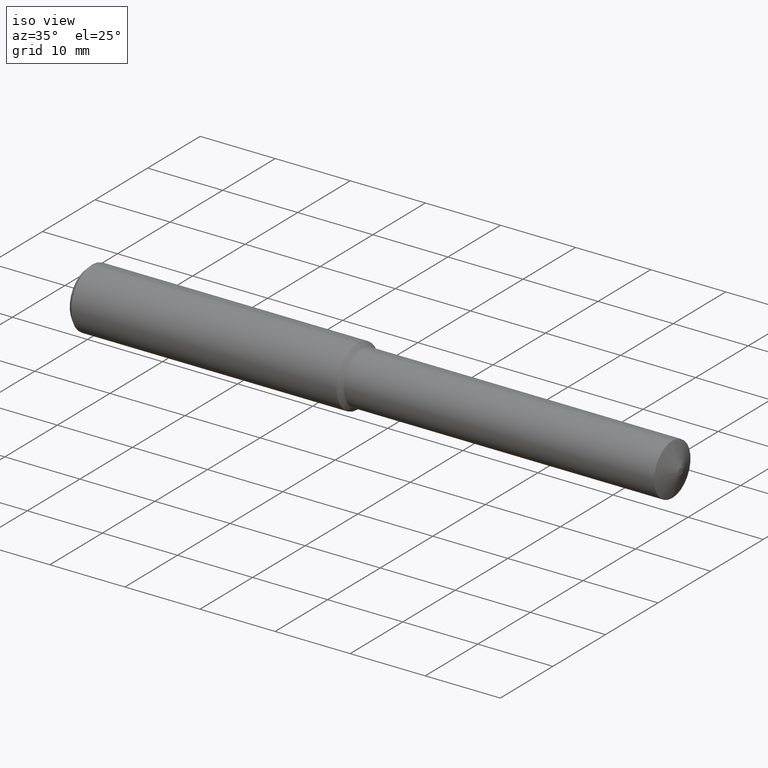
[diagram: clean part render]
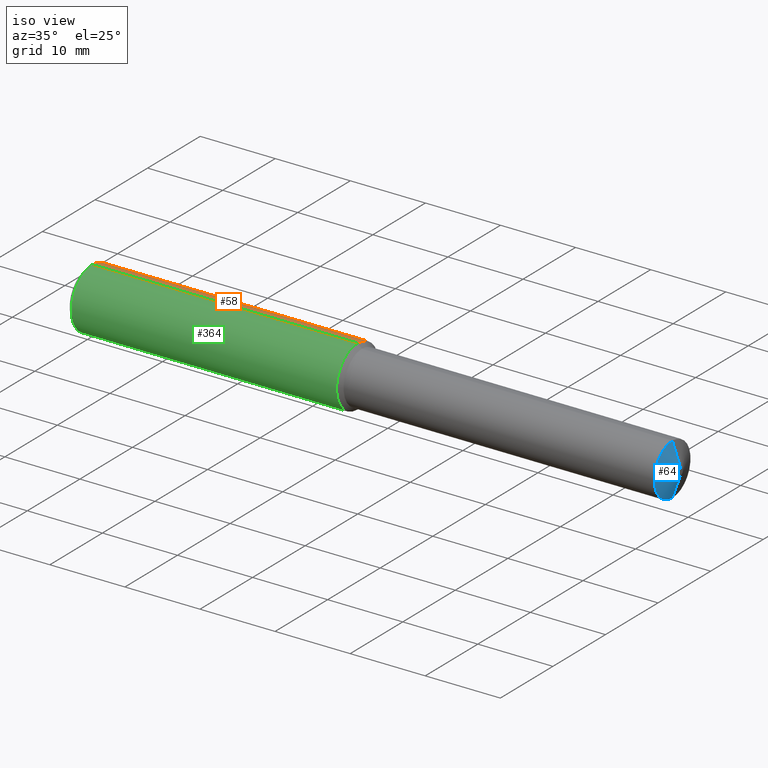
[diagram: same view with three faces highlighted in distinct colors, each labeled with its STEP entity id]
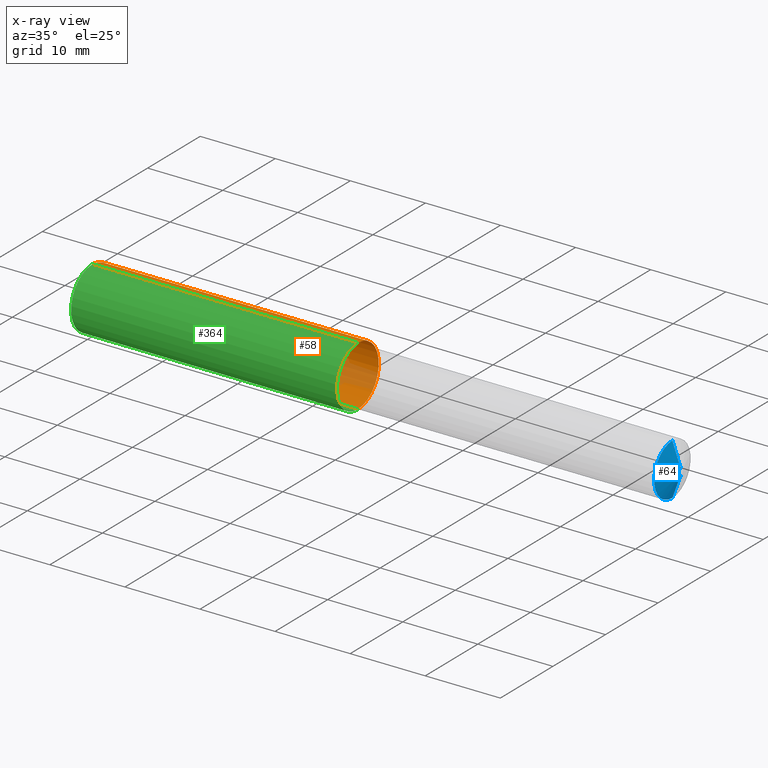
[diagram: x-ray of the same camera — body ghosted, the three highlighted faces saturated]
A machine part, iso view with three faces highlighted in distinct colors.
The next image is the same camera in x-ray (body ghosted, the three faces saturated) — at least one of them is partly hidden behind the body in this view.
Their STEP definitions:

[orange] entity #58 — the highlighted cylindrical surface (partial cylindrical patch) has radius 4 mm, axis along (1, -0, -0).
#3 = VERTEX_POINT ( 'NONE', #191 ) ;
#27 = DIRECTION ( 'NONE',  ( 1.000000000000000000, -0.000000000000000000, -0.000000000000000000 ) ) ;
#28 = CARTESIAN_POINT ( 'NONE',  ( -0.03808593750000075634, 0.000000000000000000, -0.1574803149606300023 ) ) ;
#47 = CARTESIAN_POINT ( 'NONE',  ( -0.03808593750000075634, 0.000000000000000000, 0.000000000000000000 ) ) ;
#54 = AXIS2_PLACEMENT_3D ( 'NONE', #87, #27, #168 ) ;
#58 = ADVANCED_FACE ( 'NONE', ( #112 ), #253, .T. ) ;
#62 = DIRECTION ( 'NONE',  ( 0.000000000000000000, 0.000000000000000000, -1.000000000000000000 ) ) ;
#70 = ORIENTED_EDGE ( 'NONE', *, *, #229, .F. ) ;
#75 = DIRECTION ( 'NONE',  ( 1.000000000000000000, -0.000000000000000000, -0.000000000000000000 ) ) ;
#76 = VECTOR ( 'NONE', #375, 39.37007874015748143 ) ;
#80 = EDGE_LOOP ( 'NONE', ( #213, #242, #70, #131 ) ) ;
#87 = CARTESIAN_POINT ( 'NONE',  ( 0.02500000000000000139, 0.000000000000000000, 0.000000000000000000 ) ) ;
#112 = FACE_OUTER_BOUND ( 'NONE', #80, .T. ) ;
#114 = DIRECTION ( 'NONE',  ( 1.000000000000000000, -0.000000000000000000, -0.000000000000000000 ) ) ;
#120 = CARTESIAN_POINT ( 'NONE',  ( 0.02500000000000000139, 1.928577636452525534E-17, 0.1574803149606299191 ) ) ;
#131 = ORIENTED_EDGE ( 'NONE', *, *, #268, .F. ) ;
#137 = CIRCLE ( 'NONE', #233, 0.1574803149606300579 ) ;
#138 = CARTESIAN_POINT ( 'NONE',  ( 1.417322834645669216, 0.000000000000000000, 0.1574803149606300579 ) ) ;
#148 = CIRCLE ( 'NONE', #54, 0.1574803149606299191 ) ;
#149 = VECTOR ( 'NONE', #114, 39.37007874015748143 ) ;
#168 = DIRECTION ( 'NONE',  ( 0.000000000000000000, 0.000000000000000000, -1.000000000000000000 ) ) ;
#182 = VERTEX_POINT ( 'NONE', #138 ) ;
#188 = DIRECTION ( 'NONE',  ( 0.000000000000000000, 0.000000000000000000, -1.000000000000000000 ) ) ;
#191 = CARTESIAN_POINT ( 'NONE',  ( 0.02500000000000000139, 0.000000000000000000, -0.1574803149606299191 ) ) ;
#198 = EDGE_CURVE ( 'NONE', #3, #240, #148, .T. ) ;
#200 = CARTESIAN_POINT ( 'NONE',  ( 1.417322834645669216, 0.000000000000000000, 0.000000000000000000 ) ) ;
#213 = ORIENTED_EDGE ( 'NONE', *, *, #198, .T. ) ;
#229 = EDGE_CURVE ( 'NONE', #353, #182, #137, .T. ) ;
#231 = LINE ( 'NONE', #376, #76 ) ;
#233 = AXIS2_PLACEMENT_3D ( 'NONE', #200, #261, #62 ) ;
#240 = VERTEX_POINT ( 'NONE', #120 ) ;
#242 = ORIENTED_EDGE ( 'NONE', *, *, #256, .T. ) ;
#253 = CYLINDRICAL_SURFACE ( 'NONE', #274, 0.1574803149606300023 ) ;
#256 = EDGE_CURVE ( 'NONE', #240, #182, #231, .T. ) ;
#261 = DIRECTION ( 'NONE',  ( 1.000000000000000000, -0.000000000000000000, -0.000000000000000000 ) ) ;
#268 = EDGE_CURVE ( 'NONE', #3, #353, #289, .T. ) ;
#274 = AXIS2_PLACEMENT_3D ( 'NONE', #47, #75, #188 ) ;
#289 = LINE ( 'NONE', #28, #149 ) ;
#343 = CARTESIAN_POINT ( 'NONE',  ( 1.417322834645669216, 1.928577636452526458E-17, -0.1574803149606300579 ) ) ;
#353 = VERTEX_POINT ( 'NONE', #343 ) ;
#375 = DIRECTION ( 'NONE',  ( 1.000000000000000000, -0.000000000000000000, -0.000000000000000000 ) ) ;
#376 = CARTESIAN_POINT ( 'NONE',  ( -0.03808593750000075634, 1.928577636452525842E-17, 0.1574803149606300023 ) ) ;

[blue] entity #64 — the highlighted conical surface has half-angle 70 deg.
#2 = CIRCLE ( 'NONE', #368, 0.1360000000000003983 ) ;
#11 = VERTEX_POINT ( 'NONE', #312 ) ;
#23 = DIRECTION ( 'NONE',  ( 1.000000000000000000, -0.000000000000000000, -0.000000000000000000 ) ) ;
#41 = VERTEX_POINT ( 'NONE', #333 ) ;
#45 = FACE_OUTER_BOUND ( 'NONE', #208, .T. ) ;
#46 = EDGE_CURVE ( 'NONE', #270, #41, #370, .T. ) ;
#48 = VECTOR ( 'NONE', #51, 39.37007874015748854 ) ;
#49 = CARTESIAN_POINT ( 'NONE',  ( 3.110236220472441193, 0.000000000000000000, 0.01750000000000038677 ) ) ;
#51 = DIRECTION ( 'NONE',  ( -0.3420201433256656598, 1.150791560227851502E-16, -0.9396926207859094271 ) ) ;
#64 = ADVANCED_FACE ( 'NONE', ( #45 ), #285, .T. ) ;
#82 = DIRECTION ( 'NONE',  ( 0.000000000000000000, 0.000000000000000000, 1.000000000000000000 ) ) ;
#85 = LINE ( 'NONE', #377, #48 ) ;
#90 = AXIS2_PLACEMENT_3D ( 'NONE', #106, #161, #82 ) ;
#106 = CARTESIAN_POINT ( 'NONE',  ( 3.110236220472441193, 0.000000000000000000, 0.000000000000000000 ) ) ;
#109 = EDGE_CURVE ( 'NONE', #270, #362, #186, .T. ) ;
#115 = DIRECTION ( 'NONE',  ( 1.000000000000000000, -0.000000000000000000, -0.000000000000000000 ) ) ;
#125 = ORIENTED_EDGE ( 'NONE', *, *, #109, .F. ) ;
#127 = ORIENTED_EDGE ( 'NONE', *, *, #46, .T. ) ;
#128 = ORIENTED_EDGE ( 'NONE', *, *, #196, .F. ) ;
#142 = DIRECTION ( 'NONE',  ( 0.000000000000000000, 0.000000000000000000, -1.000000000000000000 ) ) ;
#161 = DIRECTION ( 'NONE',  ( -1.000000000000000000, 0.000000000000000000, 0.000000000000000000 ) ) ;
#164 = CARTESIAN_POINT ( 'NONE',  ( 3.110236220472441193, 0.000000000000000000, 0.000000000000000000 ) ) ;
#186 = CIRCLE ( 'NONE', #254, 0.01750000000000038677 ) ;
#196 = EDGE_CURVE ( 'NONE', #362, #11, #85, .T. ) ;
#208 = EDGE_LOOP ( 'NONE', ( #128, #125, #127, #355 ) ) ;
#232 = CARTESIAN_POINT ( 'NONE',  ( 3.110236220472441193, 0.000000000000000000, 0.01750000000000038677 ) ) ;
#254 = AXIS2_PLACEMENT_3D ( 'NONE', #164, #23, #338 ) ;
#270 = VERTEX_POINT ( 'NONE', #232 ) ;
#284 = DIRECTION ( 'NONE',  ( -0.3420201433256656598, 0.000000000000000000, 0.9396926207859094271 ) ) ;
#285 = CONICAL_SURFACE ( 'NONE', #90, 0.01750000000000038677, 1.221730476396033938 ) ;
#312 = CARTESIAN_POINT ( 'NONE',  ( 3.067105747711896591, 1.665519646840405302E-17, -0.1360000000000003983 ) ) ;
#316 = CARTESIAN_POINT ( 'NONE',  ( 3.110236220472441193, 9.399164183455982845E-18, -0.01750000000000038677 ) ) ;
#319 = VECTOR ( 'NONE', #284, 39.37007874015748854 ) ;
#333 = CARTESIAN_POINT ( 'NONE',  ( 3.067105747711896591, 0.000000000000000000, 0.1360000000000003983 ) ) ;
#338 = DIRECTION ( 'NONE',  ( 0.000000000000000000, 0.000000000000000000, -1.000000000000000000 ) ) ;
#344 = EDGE_CURVE ( 'NONE', #41, #11, #2, .T. ) ;
#355 = ORIENTED_EDGE ( 'NONE', *, *, #344, .T. ) ;
#362 = VERTEX_POINT ( 'NONE', #316 ) ;
#368 = AXIS2_PLACEMENT_3D ( 'NONE', #373, #115, #142 ) ;
#370 = LINE ( 'NONE', #49, #319 ) ;
#373 = CARTESIAN_POINT ( 'NONE',  ( 3.067105747711896591, 0.000000000000000000, 0.000000000000000000 ) ) ;
#377 = CARTESIAN_POINT ( 'NONE',  ( 3.110236220472441193, 2.143131898507915367E-18, -0.01750000000000038677 ) ) ;

[green] entity #364 — the highlighted cylindrical surface (partial cylindrical patch) has radius 4 mm, axis along (1, -0, -0).
#3 = VERTEX_POINT ( 'NONE', #191 ) ;
#10 = DIRECTION ( 'NONE',  ( 0.000000000000000000, 0.000000000000000000, -1.000000000000000000 ) ) ;
#13 = ORIENTED_EDGE ( 'NONE', *, *, #256, .F. ) ;
#20 = EDGE_CURVE ( 'NONE', #240, #3, #183, .T. ) ;
#24 = AXIS2_PLACEMENT_3D ( 'NONE', #171, #230, #378 ) ;
#28 = CARTESIAN_POINT ( 'NONE',  ( -0.03808593750000075634, 0.000000000000000000, -0.1574803149606300023 ) ) ;
#68 = CYLINDRICAL_SURFACE ( 'NONE', #267, 0.1574803149606300023 ) ;
#76 = VECTOR ( 'NONE', #375, 39.37007874015748143 ) ;
#92 = ORIENTED_EDGE ( 'NONE', *, *, #20, .T. ) ;
#100 = CARTESIAN_POINT ( 'NONE',  ( -0.03808593750000075634, 0.000000000000000000, 0.000000000000000000 ) ) ;
#111 = AXIS2_PLACEMENT_3D ( 'NONE', #340, #335, #283 ) ;
#114 = DIRECTION ( 'NONE',  ( 1.000000000000000000, -0.000000000000000000, -0.000000000000000000 ) ) ;
#120 = CARTESIAN_POINT ( 'NONE',  ( 0.02500000000000000139, 1.928577636452525534E-17, 0.1574803149606299191 ) ) ;
#130 = CIRCLE ( 'NONE', #24, 0.1574803149606300579 ) ;
#138 = CARTESIAN_POINT ( 'NONE',  ( 1.417322834645669216, 0.000000000000000000, 0.1574803149606300579 ) ) ;
#149 = VECTOR ( 'NONE', #114, 39.37007874015748143 ) ;
#153 = ORIENTED_EDGE ( 'NONE', *, *, #268, .T. ) ;
#171 = CARTESIAN_POINT ( 'NONE',  ( 1.417322834645669216, 0.000000000000000000, 0.000000000000000000 ) ) ;
#182 = VERTEX_POINT ( 'NONE', #138 ) ;
#183 = CIRCLE ( 'NONE', #111, 0.1574803149606299191 ) ;
#191 = CARTESIAN_POINT ( 'NONE',  ( 0.02500000000000000139, 0.000000000000000000, -0.1574803149606299191 ) ) ;
#206 = ORIENTED_EDGE ( 'NONE', *, *, #330, .F. ) ;
#230 = DIRECTION ( 'NONE',  ( 1.000000000000000000, -0.000000000000000000, -0.000000000000000000 ) ) ;
#231 = LINE ( 'NONE', #376, #76 ) ;
#240 = VERTEX_POINT ( 'NONE', #120 ) ;
#241 = DIRECTION ( 'NONE',  ( 1.000000000000000000, -0.000000000000000000, -0.000000000000000000 ) ) ;
#256 = EDGE_CURVE ( 'NONE', #240, #182, #231, .T. ) ;
#267 = AXIS2_PLACEMENT_3D ( 'NONE', #100, #241, #10 ) ;
#268 = EDGE_CURVE ( 'NONE', #3, #353, #289, .T. ) ;
#283 = DIRECTION ( 'NONE',  ( 0.000000000000000000, 0.000000000000000000, -1.000000000000000000 ) ) ;
#287 = FACE_OUTER_BOUND ( 'NONE', #302, .T. ) ;
#289 = LINE ( 'NONE', #28, #149 ) ;
#302 = EDGE_LOOP ( 'NONE', ( #13, #92, #153, #206 ) ) ;
#330 = EDGE_CURVE ( 'NONE', #182, #353, #130, .T. ) ;
#335 = DIRECTION ( 'NONE',  ( 1.000000000000000000, -0.000000000000000000, -0.000000000000000000 ) ) ;
#340 = CARTESIAN_POINT ( 'NONE',  ( 0.02500000000000000139, 0.000000000000000000, 0.000000000000000000 ) ) ;
#343 = CARTESIAN_POINT ( 'NONE',  ( 1.417322834645669216, 1.928577636452526458E-17, -0.1574803149606300579 ) ) ;
#353 = VERTEX_POINT ( 'NONE', #343 ) ;
#364 = ADVANCED_FACE ( 'NONE', ( #287 ), #68, .T. ) ;
#375 = DIRECTION ( 'NONE',  ( 1.000000000000000000, -0.000000000000000000, -0.000000000000000000 ) ) ;
#376 = CARTESIAN_POINT ( 'NONE',  ( -0.03808593750000075634, 1.928577636452525842E-17, 0.1574803149606300023 ) ) ;
#378 = DIRECTION ( 'NONE',  ( 0.000000000000000000, 0.000000000000000000, -1.000000000000000000 ) ) ;